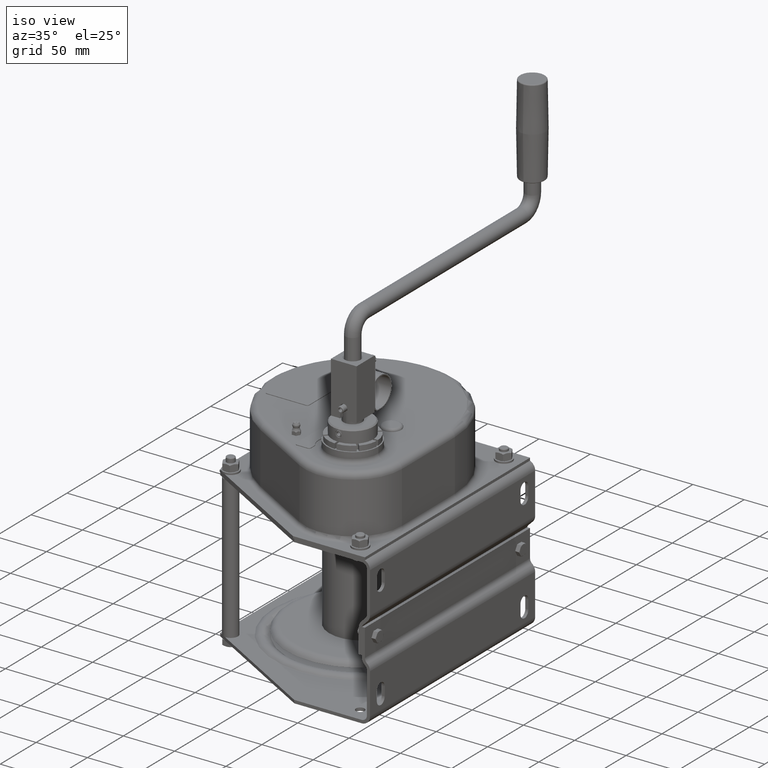
[diagram: clean part render]
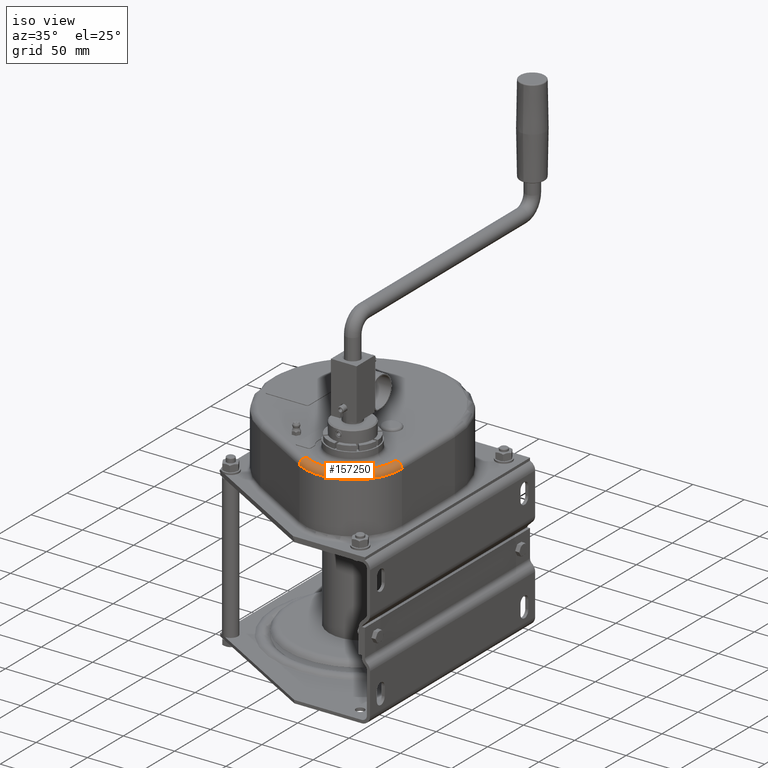
[diagram: same view with one face highlighted and labeled with its STEP entity id]
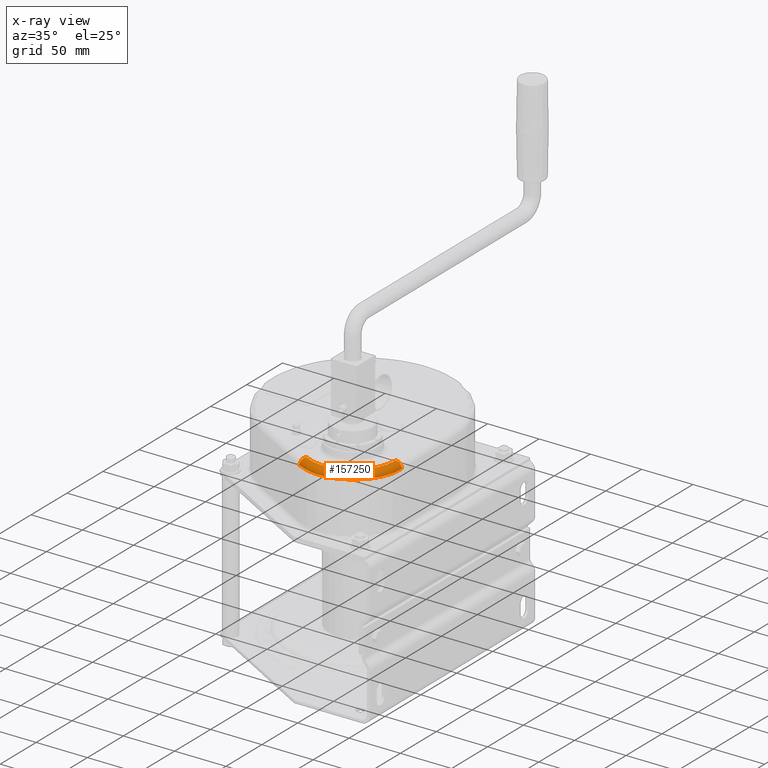
[diagram: x-ray of the same camera — body ghosted, the highlighted face saturated]
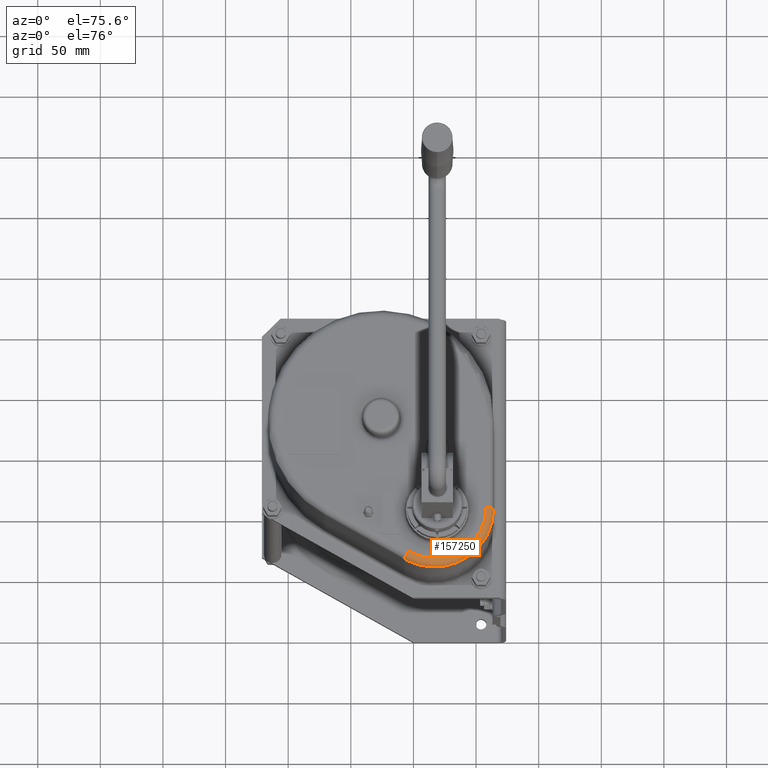
[diagram: same view with one face highlighted and labeled with its STEP entity id]
A machine part, iso view. The second image highlights one B-rep face of the part: STEP entity #157250.
The next image is the same camera in x-ray: the body ghosted, the highlighted face saturated — about 0% of this face is hidden behind the body in this view.
A second angle (auxiliary view) of the same face is appended — the face is thin or edge-on in the first view.
In plain terms, the highlighted toroidal blend (fillet) surface has major radius 41.5 mm and minor (blend) radius 6 mm.
Its self-contained STEP definition (entity closure, byte-faithful):
#148860=CARTESIAN_POINT('',(-90.,201.,-73.6121593216773));
#148870=VERTEX_POINT('',#148860);
#149320=CARTESIAN_POINT('',(-18.75,201.,-114.748366001438));
#149330=VERTEX_POINT('',#149320);
#150650=CARTESIAN_POINT('',(-42.5,201.,-73.6121593216773));
#150660=DIRECTION('',(0.,1.,0.));
#150670=DIRECTION('',(-1.,0.,0.));
#150680=AXIS2_PLACEMENT_3D('',#150650,#150660,#150670);
#150690=CIRCLE('',#150680,47.5);
#150700=EDGE_CURVE('',#149330,#148870,#150690,.T.);
#151330=CARTESIAN_POINT('',(-42.5,207.,-73.6121593216773));
#151340=DIRECTION('',(0.,1.,0.));
#151350=DIRECTION('',(-1.,0.,0.));
#151360=AXIS2_PLACEMENT_3D('',#151330,#151340,#151350);
#151370=CIRCLE('',#151360,41.5);
#151380=CARTESIAN_POINT('',(-21.75,207.,-109.552213578732));
#151390=VERTEX_POINT('',#151380);
#151400=CARTESIAN_POINT('',(-84.,207.,-73.6121593216773));
#151410=VERTEX_POINT('',#151400);
#151420=EDGE_CURVE('',#151390,#151410,#151370,.T.);
#157020=CARTESIAN_POINT('',(-42.5,201.,-73.6121593216773));
#157030=DIRECTION('',(0.,1.,0.));
#157040=DIRECTION('',(-1.,0.,0.));
#157050=AXIS2_PLACEMENT_3D('',#157020,#157030,#157040);
#157060=TOROIDAL_SURFACE('',#157050,41.5,6.);
#157070=CARTESIAN_POINT('',(-21.75,201.,-109.552213578732));
#157080=DIRECTION('',(-0.866025403784439,0.,-0.5));
#157090=DIRECTION('',(0.5,0.,-0.866025403784439));
#157100=AXIS2_PLACEMENT_3D('',#157070,#157080,#157090);
#157110=CIRCLE('',#157100,6.);
#157120=EDGE_CURVE('',#151390,#149330,#157110,.T.);
#157130=ORIENTED_EDGE('',*,*,#157120,.T.);
#157140=ORIENTED_EDGE('',*,*,#151420,.F.);
#157150=CARTESIAN_POINT('',(-84.,201.,-73.6121593216773));
#157160=DIRECTION('',(-2.24381916555821E-16,0.,1.));
#157170=DIRECTION('',(-1.,0.,-2.24381916555821E-16));
#157180=AXIS2_PLACEMENT_3D('',#157150,#157160,#157170);
#157190=CIRCLE('',#157180,6.);
#157200=EDGE_CURVE('',#151410,#148870,#157190,.T.);
#157210=ORIENTED_EDGE('',*,*,#157200,.F.);
#157220=ORIENTED_EDGE('',*,*,#150700,.T.);
#157230=EDGE_LOOP('',(#157220,#157210,#157140,#157130));
#157240=FACE_OUTER_BOUND('',#157230,.T.);
#157250=ADVANCED_FACE('',(#157240),#157060,.T.);